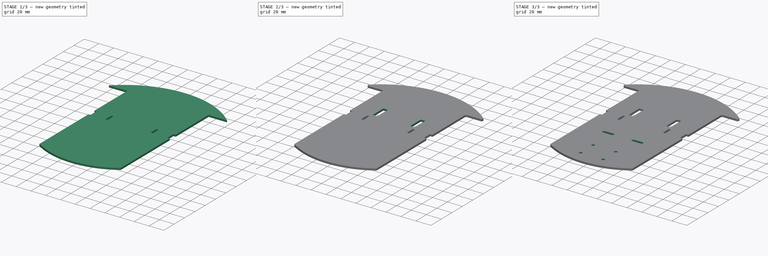
[diagram: build sequence overview — one tinted view per stage of 3, left to right]
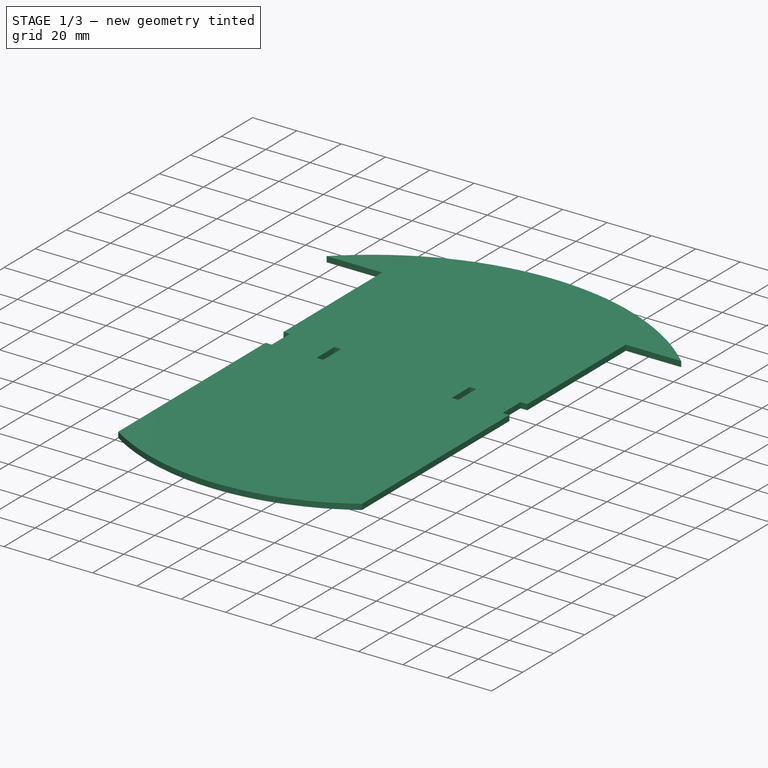
[diagram: stage 1 of 3 — iso view after this stage's code; geometry added in this stage tinted green]
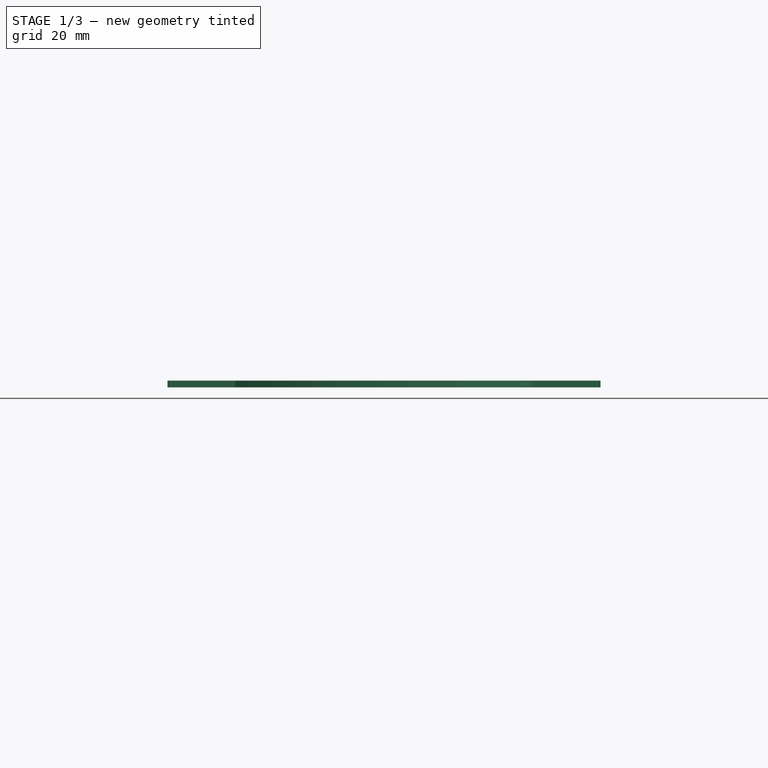
[diagram: stage 1 of 3 — front view after this stage's code; geometry added in this stage tinted green]
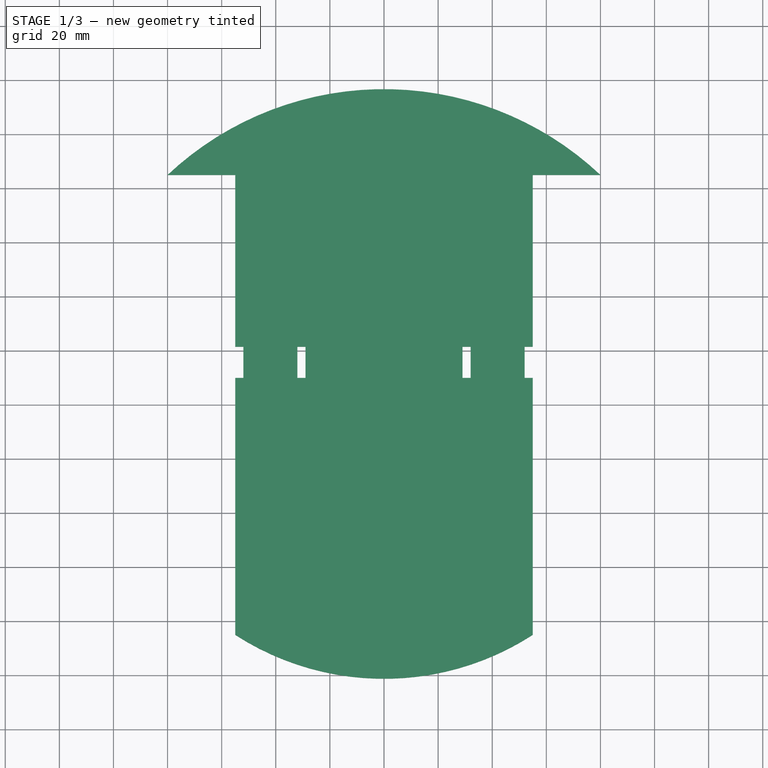
[diagram: stage 1 of 3 — top view after this stage's code; geometry added in this stage tinted green]
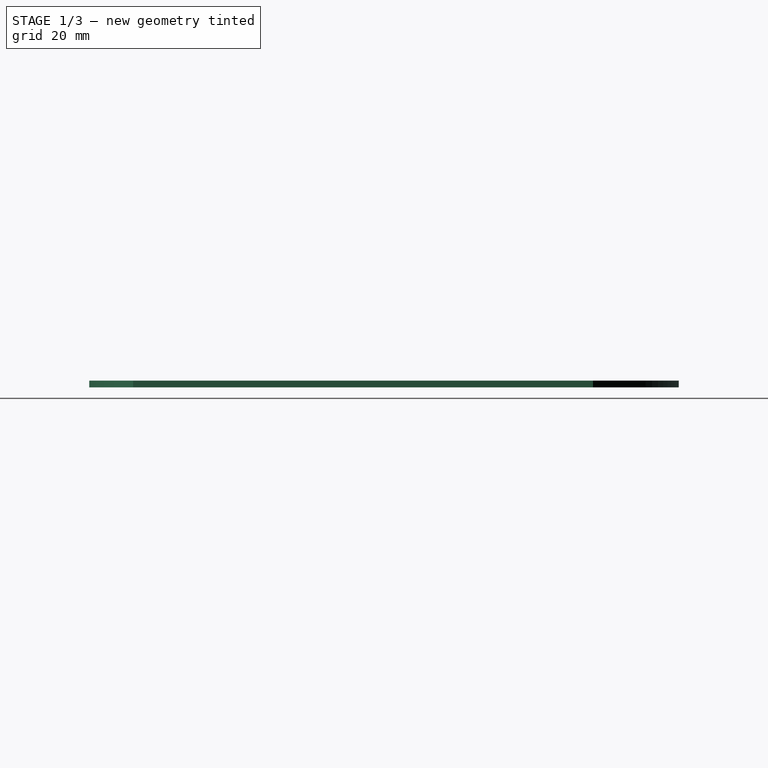
[diagram: stage 1 of 3 — right view after this stage's code; geometry added in this stage tinted green]
FCSTD DOCUMENT  (FreeCAD 0.16R6712 (Git))
Label: chassis
License: All rights reserved
LicenseURL: http://en.wikipedia.org/wiki/All_rights_reserved
objects: Sketcher::SketchObject×5, PartDesign::Pocket×4, PartDesign::Fillet×2, PartDesign::Pad×1
note: 17 computed .brp shape members not serialized (recipe doc carries the construction recipe); baked Part::Feature solids carry a one-line shape summary decoded from their .brp

FEATURE [Sketcher::SketchObject] Sketch
  sketch-geometry (6):
    g0: LineSegment StartX=55 StartY=85 StartZ=0 EndX=55 EndY=-85 EndZ=0
    g1: LineSegment StartX=-55 StartY=-85 StartZ=0 EndX=-55 EndY=85 EndZ=0
    g2: ArcOfCircle CenterX=0 CenterY=0 CenterZ=0 NormalX=0 NormalY=0 NormalZ=1 Radius=116.726 StartAngle=0.815692 EndAngle=2.3259
    g3: ArcOfCircle CenterX=0 CenterY=0 CenterZ=0 NormalX=0 NormalY=0 NormalZ=1 Radius=101.242 StartAngle=4.13808 EndAngle=5.28669
    g4: LineSegment StartX=80 StartY=85 StartZ=0 EndX=55 EndY=85 EndZ=0
    g5: LineSegment StartX=-55 StartY=85 StartZ=0 EndX=-80 EndY=85 EndZ=0
  constraints (19):
    c: DistanceX(g1,g0) = 110
    c: DistanceY(g0,g0) = 170
    c: Symmetric(g0,g1,g-2)
    c: Symmetric(g3,g1,g-1)
    c: DistanceX(g2,g2) = 160
    c: DistanceY(g0,g2) = 0
    c: DistanceX(g0,g2) = 25
    c: Equal(g1,g0)
    c: Symmetric(g0,g0,g-1)
    c: Symmetric(g0,g3,g-2)
    c: Parallel(g1,g0)
    c: Coincident(g2,g-1)
    c: Coincident(g3,g-1)
    c: Coincident(g3,g0)
    c: Coincident(g4,g2)
    c: Coincident(g4,g0)
    c: Coincident(g5,g1)
    c: Coincident(g5,g2)
    c: Horizontal(g5)
FEATURE [PartDesign::Pad] Pad
  Length = 2.5
  Length2 = 100
  Sketch = -> Sketch
  Type = 0
FEATURE [Sketcher::SketchObject] Sketch001
  ExternalGeometry = -> [Pad]
  Placement = pos=(0,0,2.5) rot=(0,0,1;0rad)
  Support = -> Pad [Face8]
  sketch-geometry (16):
    g0: LineSegment StartX=-55 StartY=21.5 StartZ=0 EndX=-52 EndY=21.5 EndZ=0
    g1: LineSegment StartX=-52 StartY=21.5 StartZ=0 EndX=-52 EndY=10 EndZ=0
    g2: LineSegment StartX=-52 StartY=10 StartZ=0 EndX=-55 EndY=10 EndZ=0
    g3: LineSegment StartX=-55 StartY=10 StartZ=0 EndX=-55 EndY=21.5 EndZ=0
    g4: LineSegment StartX=52 StartY=21.5 StartZ=0 EndX=55 EndY=21.5 EndZ=0
    g5: LineSegment StartX=55 StartY=21.5 StartZ=0 EndX=55 EndY=10 EndZ=0
    g6: LineSegment StartX=55 StartY=10 StartZ=0 EndX=52 EndY=10 EndZ=0
    g7: LineSegment StartX=52 StartY=10 StartZ=0 EndX=52 EndY=21.5 EndZ=0
    g8: LineSegment StartX=-32 StartY=21.5 StartZ=0 EndX=-29 EndY=21.5 EndZ=0
    g9: LineSegment StartX=-29 StartY=21.5 StartZ=0 EndX=-29 EndY=10 EndZ=0
    g10: LineSegment StartX=-29 StartY=10 StartZ=0 EndX=-32 EndY=10 EndZ=0
    g11: LineSegment StartX=-32 StartY=10 StartZ=0 EndX=-32 EndY=21.5 EndZ=0
    g12: LineSegment StartX=29 StartY=21.5 StartZ=0 EndX=32 EndY=21.5 EndZ=0
    g13: LineSegment StartX=32 StartY=21.5 StartZ=0 EndX=32 EndY=10 EndZ=0
    g14: LineSegment StartX=32 StartY=10 StartZ=0 EndX=29 EndY=10 EndZ=0
    g15: LineSegment StartX=29 StartY=10 StartZ=0 EndX=29 EndY=21.5 EndZ=0
  constraints (46):
    c: Coincident(g0,g1)
    c: Coincident(g1,g2)
    c: Coincident(g2,g3)
    c: Coincident(g3,g0)
    c: Horizontal(g0)
    c: Horizontal(g2)
    c: Vertical(g1)
    c: Vertical(g3)
    c: DistanceY(g3,g3) = 11.5
    c: DistanceX(g0,g0) = 3
    c: DistanceY(g-1,g1) = 10
    c: DistanceX(g0,g-3) = 0
    c: Coincident(g4,g5)
    c: Coincident(g5,g6)
    c: Coincident(g6,g7)
    c: Coincident(g7,g4)
    c: Horizontal(g4)
    c: Horizontal(g6)
    c: Vertical(g5)
    c: Vertical(g7)
    c: Equal(g3,g7) = 11.5
    c: Equal(g0,g4) = 3
    c: Symmetric(g6,g1,g-2)
    c: Coincident(g8,g9)
    c: Coincident(g9,g10)
    c: Coincident(g10,g11)
    c: Coincident(g11,g8)
    c: Horizontal(g8)
    c: Horizontal(g10)
    c: Vertical(g9)
    c: Vertical(g11)
    c: Equal(g3,g11) = 11.5
    c: Equal(g0,g8) = 3
    c: Coincident(g12,g13)
    c: Coincident(g13,g14)
    c: Coincident(g14,g15)
    c: Coincident(g15,g12)
    c: Horizontal(g12)
    c: Horizontal(g14)
    c: Vertical(g13)
    c: Vertical(g15)
    c: Equal(g3,g15) = 11.5
    c: Equal(g0,g12) = 3
    c: DistanceX(g1,g10) = 20
    c: DistanceY(g-1,g10) = 10
    c: Symmetric(g9,g14,g-2)
FEATURE [PartDesign::Pocket] Pocket
  Length = 5
  Sketch = -> Sketch001
  Type = 1
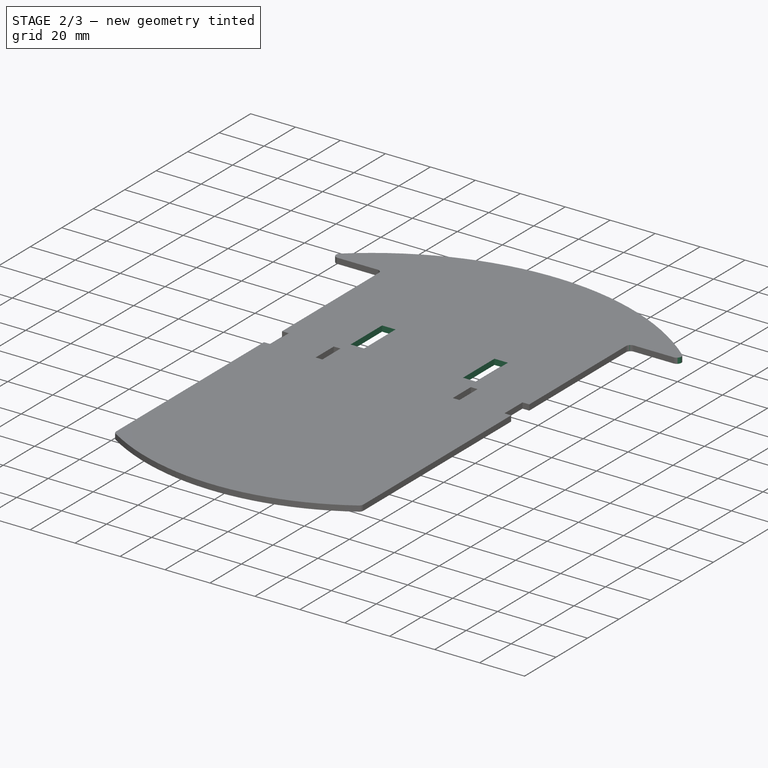
[diagram: stage 2 of 3 — iso view after this stage's code; geometry added in this stage tinted green]
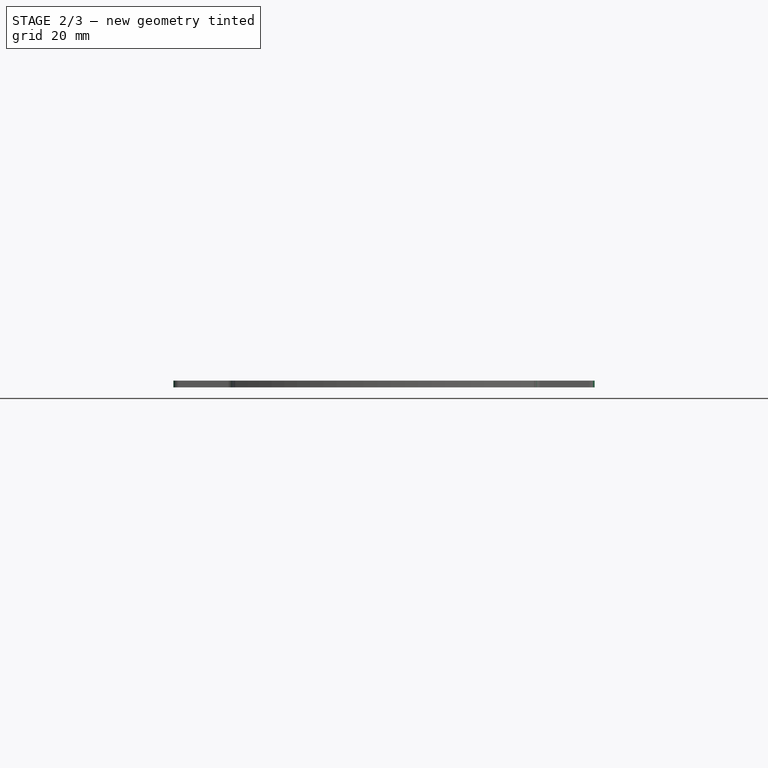
[diagram: stage 2 of 3 — front view after this stage's code; geometry added in this stage tinted green]
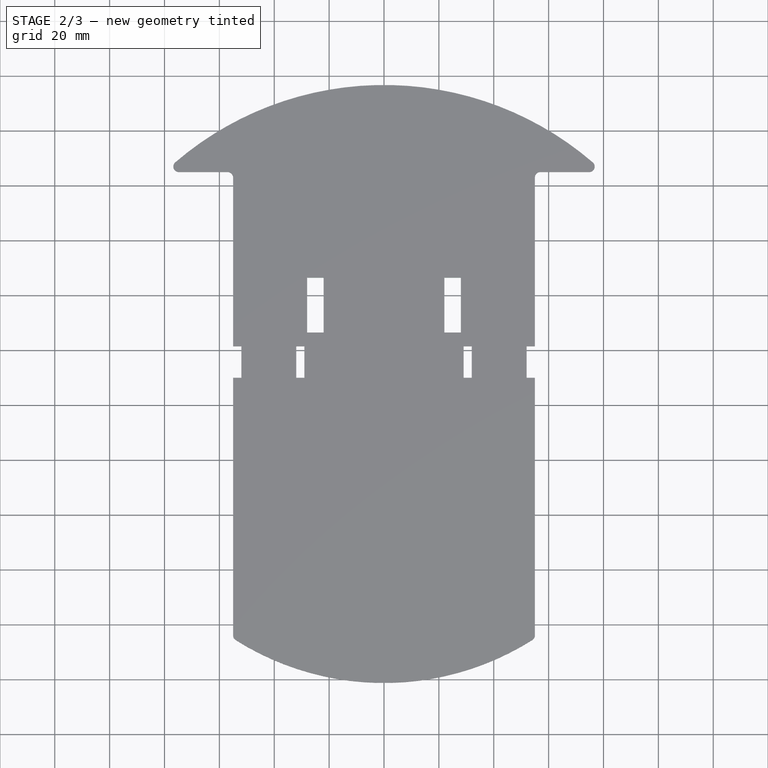
[diagram: stage 2 of 3 — top view after this stage's code; geometry added in this stage tinted green]
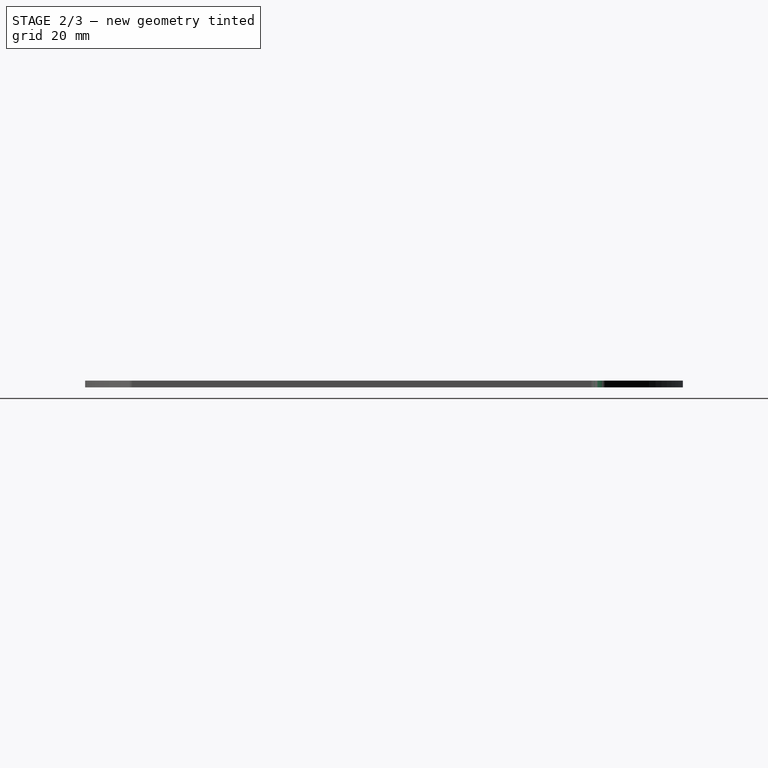
[diagram: stage 2 of 3 — right view after this stage's code; geometry added in this stage tinted green]
FEATURE [PartDesign::Fillet] Fillet
  Base = -> Pocket [Edge49,Edge2]
  Radius = 2
FEATURE [PartDesign::Fillet] Fillet001
  Base = -> Fillet [Edge3,Edge30,Edge61,Edge63]
  Radius = 2
FEATURE [Sketcher::SketchObject] Sketch002
  ExternalGeometry = -> [Fillet001]
  Placement = pos=(0,0,2.5) rot=(0,0,1;0rad)
  Support = -> Fillet001 [Face5]
  sketch-geometry (8):
    g0: LineSegment StartX=-28 StartY=46.5 StartZ=0 EndX=-22 EndY=46.5 EndZ=0
    g1: LineSegment StartX=-22 StartY=46.5 StartZ=0 EndX=-22 EndY=26.5 EndZ=0
    g2: LineSegment StartX=-22 StartY=26.5 StartZ=0 EndX=-28 EndY=26.5 EndZ=0
    g3: LineSegment StartX=-28 StartY=26.5 StartZ=0 EndX=-28 EndY=46.5 EndZ=0
    g4: LineSegment StartX=22 StartY=46.5 StartZ=0 EndX=28 EndY=46.5 EndZ=0
    g5: LineSegment StartX=28 StartY=46.5 StartZ=0 EndX=28 EndY=26.5 EndZ=0
    g6: LineSegment StartX=28 StartY=26.5 StartZ=0 EndX=22 EndY=26.5 EndZ=0
    g7: LineSegment StartX=22 StartY=26.5 StartZ=0 EndX=22 EndY=46.5 EndZ=0
  constraints (23):
    c: Coincident(g0,g1)
    c: Coincident(g1,g2)
    c: Coincident(g2,g3)
    c: Coincident(g3,g0)
    c: Horizontal(g0)
    c: Horizontal(g2)
    c: Vertical(g1)
    c: Vertical(g3)
    c: DistanceY(g-3,g2) = 5
    c: DistanceX(g2,g-4) = -1
    c: DistanceX(g2,g2) = 6
    c: DistanceY(g3,g3) = 20
    c: Coincident(g4,g5)
    c: Coincident(g5,g6)
    c: Coincident(g6,g7)
    c: Coincident(g7,g4)
    c: Horizontal(g4)
    c: Horizontal(g6)
    c: Vertical(g5)
    c: Vertical(g7)
    c: Equal(g2,g6) = 6
    c: Equal(g3,g7) = 20
    c: Symmetric(g1,g6,g-2)
FEATURE [PartDesign::Pocket] Pocket001
  Length = 5
  Sketch = -> Sketch002
  Type = 1
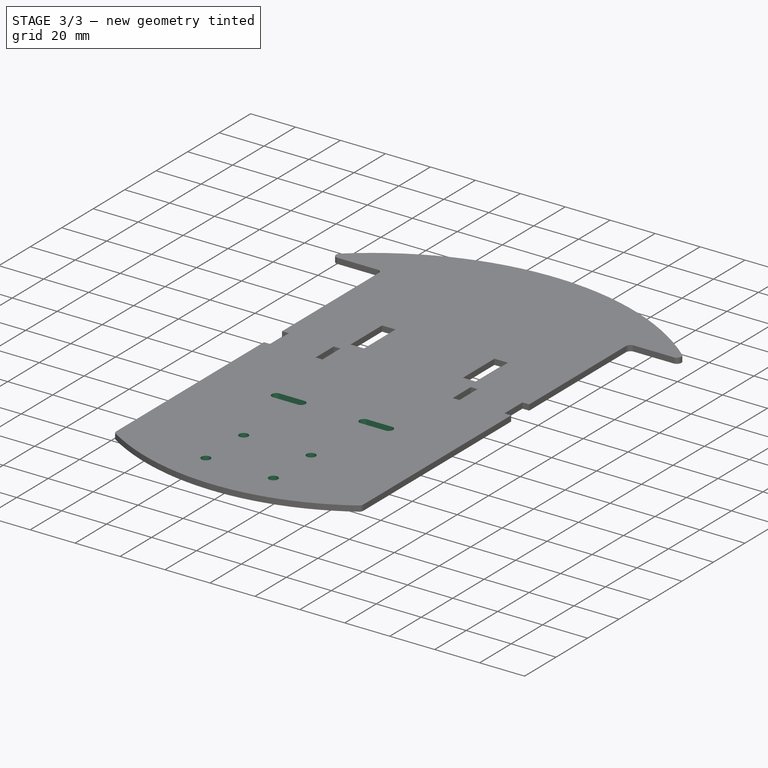
[diagram: stage 3 of 3 — iso view after this stage's code; geometry added in this stage tinted green]
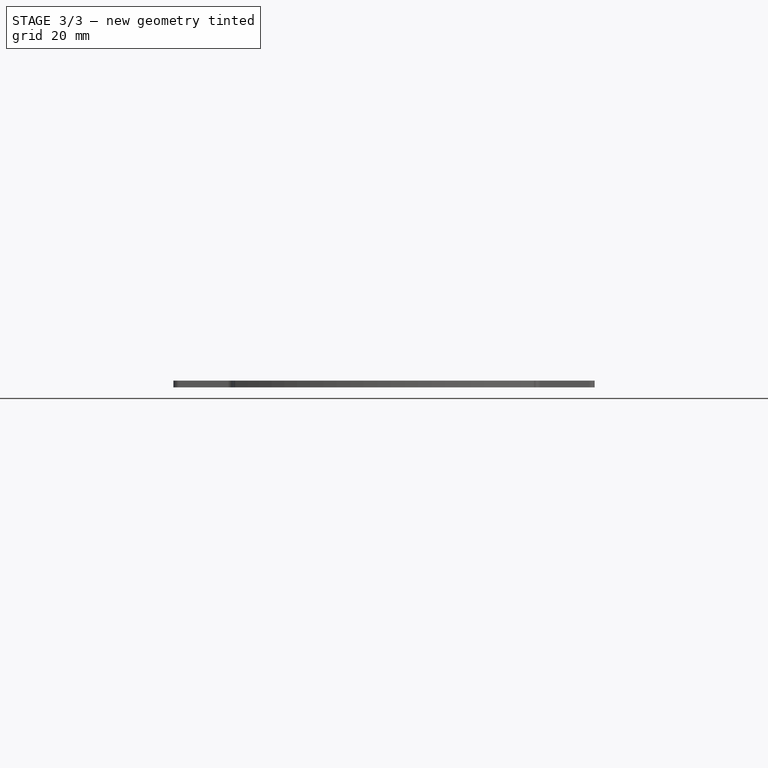
[diagram: stage 3 of 3 — front view after this stage's code; geometry added in this stage tinted green]
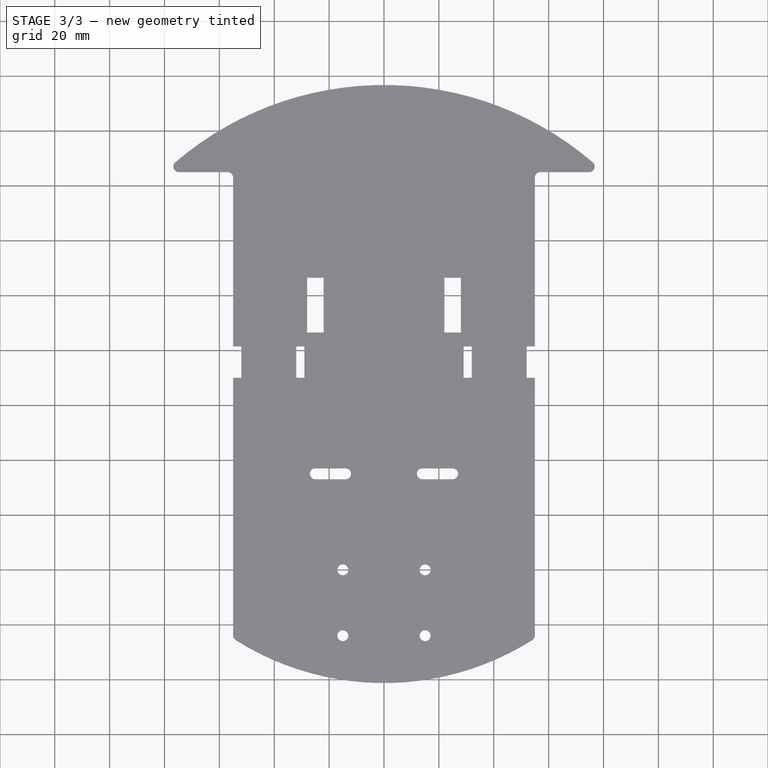
[diagram: stage 3 of 3 — top view after this stage's code; geometry added in this stage tinted green]
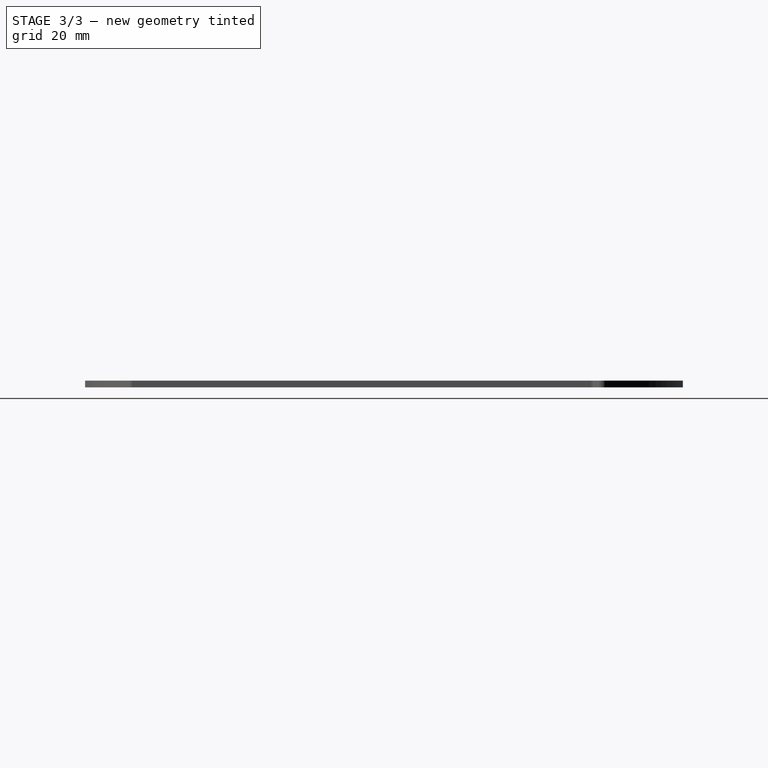
[diagram: stage 3 of 3 — right view after this stage's code; geometry added in this stage tinted green]
FEATURE [Sketcher::SketchObject] Sketch003
  Placement = pos=(0,0,2.5) rot=(0,0,1;0rad)
  Support = -> Pocket001 [Face5]
  sketch-geometry (4):
    g0: Circle CenterX=-15 CenterY=-60 CenterZ=0 NormalX=0 NormalY=0 NormalZ=1 Radius=2
    g1: Circle CenterX=15 CenterY=-60 CenterZ=0 NormalX=0 NormalY=0 NormalZ=1 Radius=2
    g2: Circle CenterX=15 CenterY=-84 CenterZ=0 NormalX=0 NormalY=0 NormalZ=1 Radius=2
    g3: Circle CenterX=-15 CenterY=-84 CenterZ=0 NormalX=0 NormalY=0 NormalZ=1 Radius=2
  constraints (10):
    c: Equal(g0,g1)
    c: Equal(g1,g3)
    c: Equal(g3,g2)
    c: Radius(g0) = 2
    c: Symmetric(g0,g1,g-2)
    c: Symmetric(g3,g2,g-2)
    c: DistanceX(g0,g1) = 30
    c: DistanceY(g2,g1) = 24
    c: DistanceX(g3,g2) = 30
    c: DistanceY(g1,g-1) = 60
FEATURE [PartDesign::Pocket] Pocket002
  Length = 5
  Sketch = -> Sketch003
  Type = 1
FEATURE [Sketcher::SketchObject] Sketch004
  ExternalGeometry = -> [Pocket002]
  Placement = pos=(0,0,2.5) rot=(0,0,1;0rad)
  Support = -> Pocket002 [Face5]
  sketch-geometry (8):
    g0: ArcOfCircle CenterX=-25 CenterY=-25 CenterZ=0 NormalX=0 NormalY=0 NormalZ=1 Radius=2 StartAngle=1.5708 EndAngle=4.71239
    g1: ArcOfCircle CenterX=-14 CenterY=-25 CenterZ=0 NormalX=0 NormalY=0 NormalZ=1 Radius=2 StartAngle=4.71239 EndAngle=7.85398
    g2: LineSegment StartX=-25 StartY=-27 StartZ=0 EndX=-14 EndY=-27 EndZ=0
    g3: LineSegment StartX=-25 StartY=-23 StartZ=0 EndX=-14 EndY=-23 EndZ=0
    g4: ArcOfCircle CenterX=14 CenterY=-25 CenterZ=0 NormalX=0 NormalY=0 NormalZ=1 Radius=2 StartAngle=1.5708 EndAngle=4.71239
    g5: ArcOfCircle CenterX=25 CenterY=-25 CenterZ=0 NormalX=0 NormalY=0 NormalZ=1 Radius=2 StartAngle=4.71239 EndAngle=7.85398
    g6: LineSegment StartX=14 StartY=-27 StartZ=0 EndX=25 EndY=-27 EndZ=0
    g7: LineSegment StartX=14 StartY=-23 StartZ=0 EndX=25 EndY=-23 EndZ=0
  constraints (20):
    c: Tangent(g0,g3) = 1.5708
    c: Tangent(g0,g2) = -1.5708
    c: Tangent(g2,g1) = -1.5708
    c: Tangent(g3,g1) = 1.5708
    c: Horizontal(g2)
    c: Equal(g0,g1)
    c: Radius(g1) = 2
    c: DistanceX(g0,g1) = 11
    c: DistanceX(g1,g-1) = 14
    c: Tangent(g4,g7) = 1.5708
    c: Tangent(g4,g6) = -1.5708
    c: Tangent(g6,g5) = -1.5708
    c: Tangent(g7,g5) = 1.5708
    c: Horizontal(g6)
    c: Equal(g4,g5)
    c: DistanceX(g4,g5) = 11
    c: Radius(g4) = 2
    c: DistanceY(g-3,g4) = 35
    c: DistanceY(g-3,g1) = 35
    c: DistanceX(g-1,g4) = 14
FEATURE [PartDesign::Pocket] Pocket003
  Length = 5
  Sketch = -> Sketch004
  Type = 1
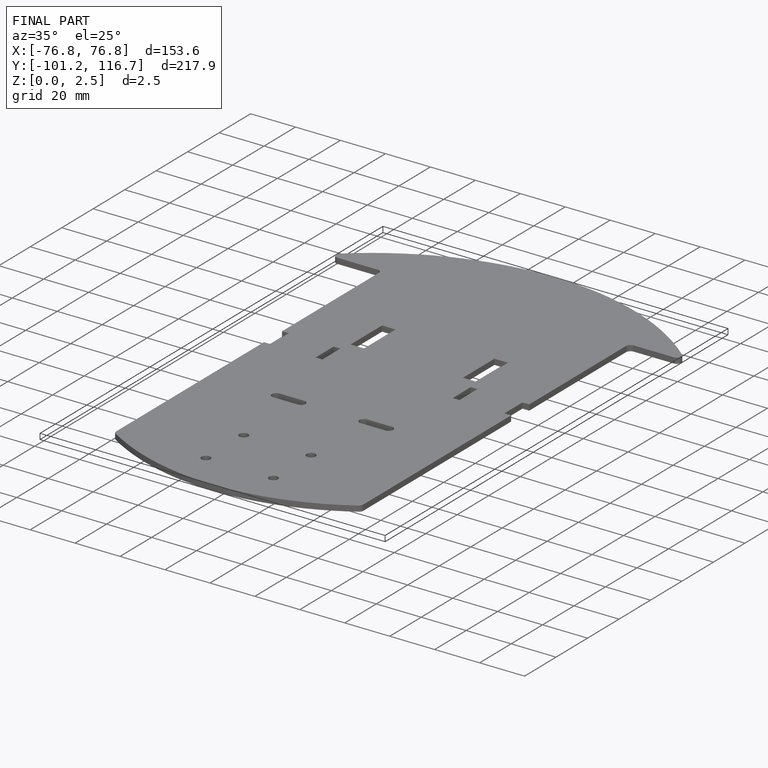
[diagram: finished part — iso view with bounding-box wireframe]
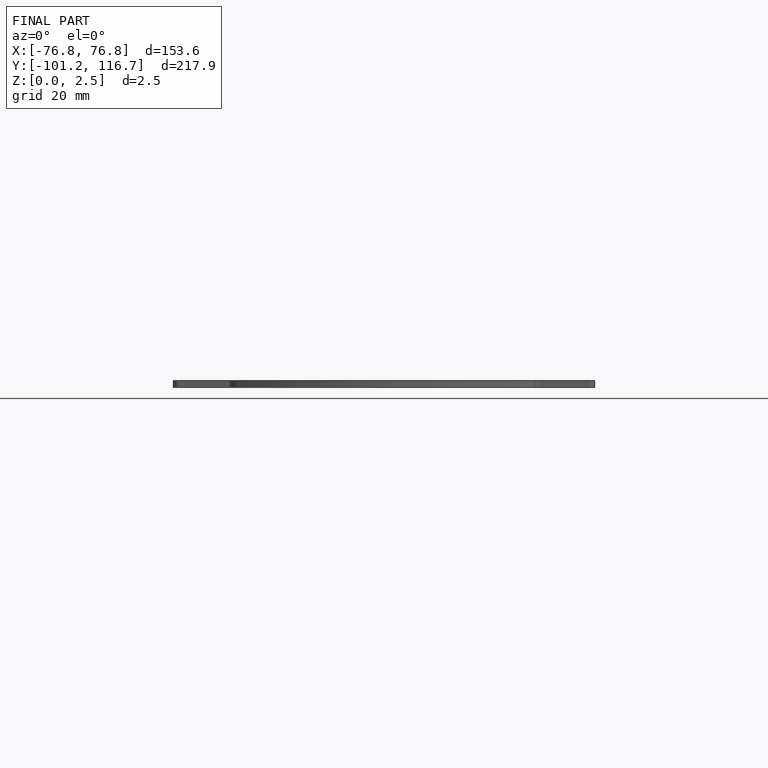
[diagram: finished part — front view with bounding-box wireframe]
